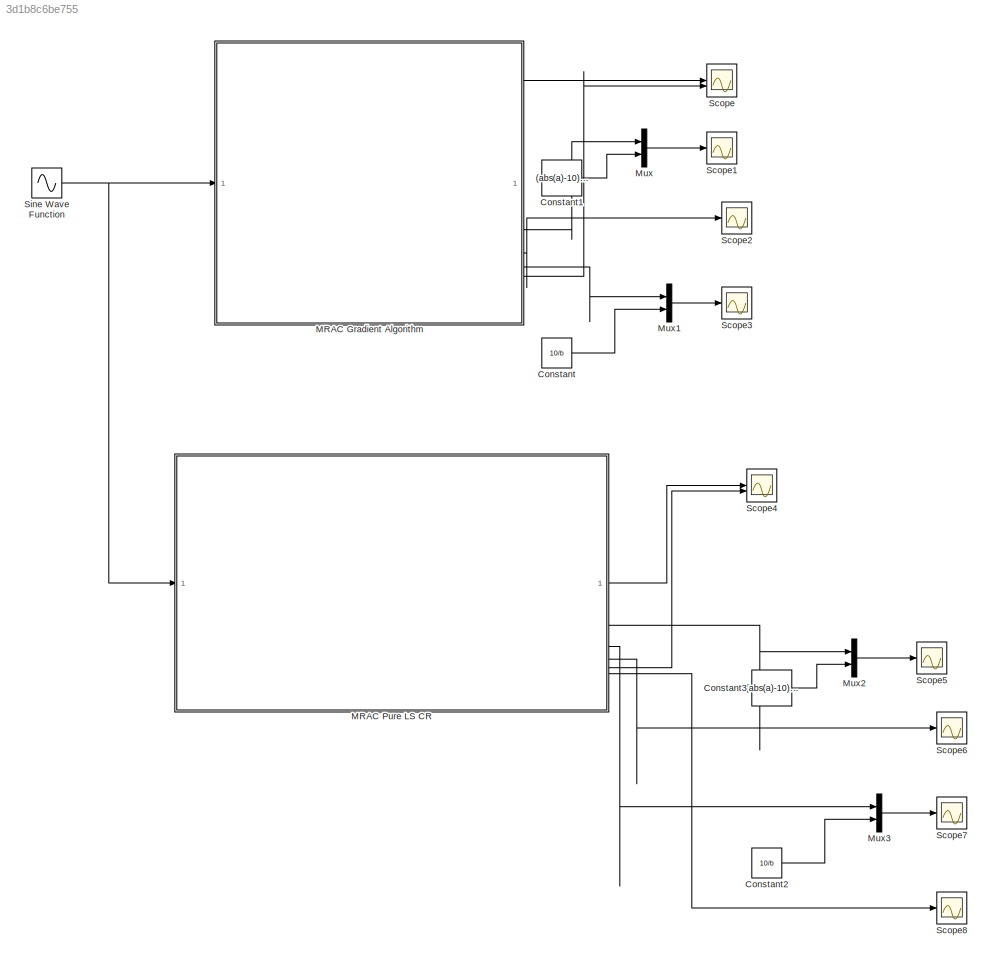
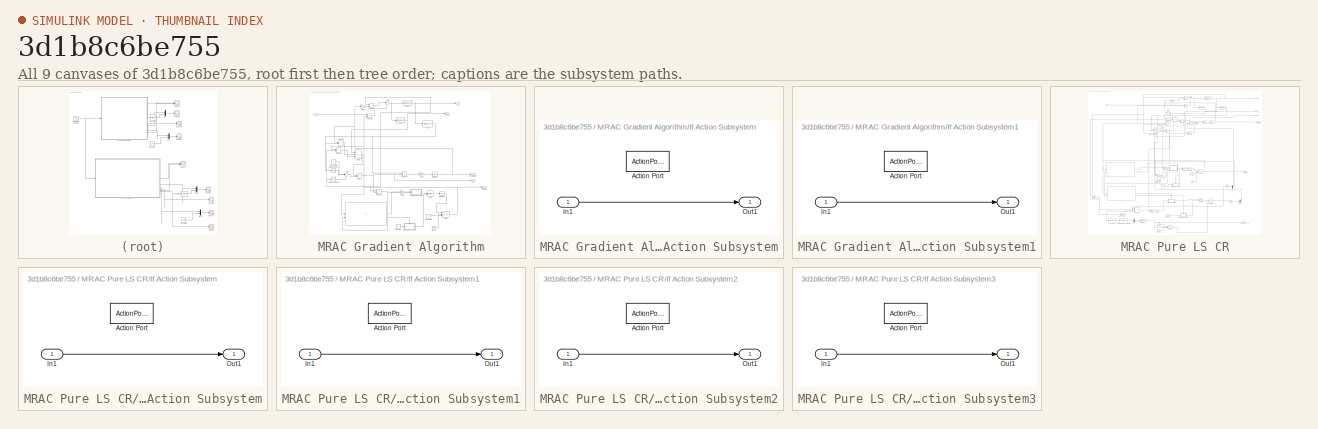
[diagram: thumbnail index - all 9 canvases of the model, root first then tree order]
MODEL slx_3d1b8c6be755
KIND model
CONFIG AbsTol = 1e-10
CONFIG EnableMultiTasking = off
CONFIG FixedStep = auto
CONFIG MaxStep = auto
CONFIG MinStep = auto
CONFIG RelTol = 1e-13
CONFIG SampleTimeConstraint = Unconstrained
CONFIG SolverName = VariableStepAuto
CONFIG StartTime = 0.0
CONFIG StopTime = 20.0
BLOCK [Constant] Constant
  Value = 10/b
BLOCK [Constant] Constant1
  Value = (abs(a)-10)/b
BLOCK [Constant] Constant2
  Value = 10/b
BLOCK [Constant] Constant3
  Value = (abs(a)-10)/b
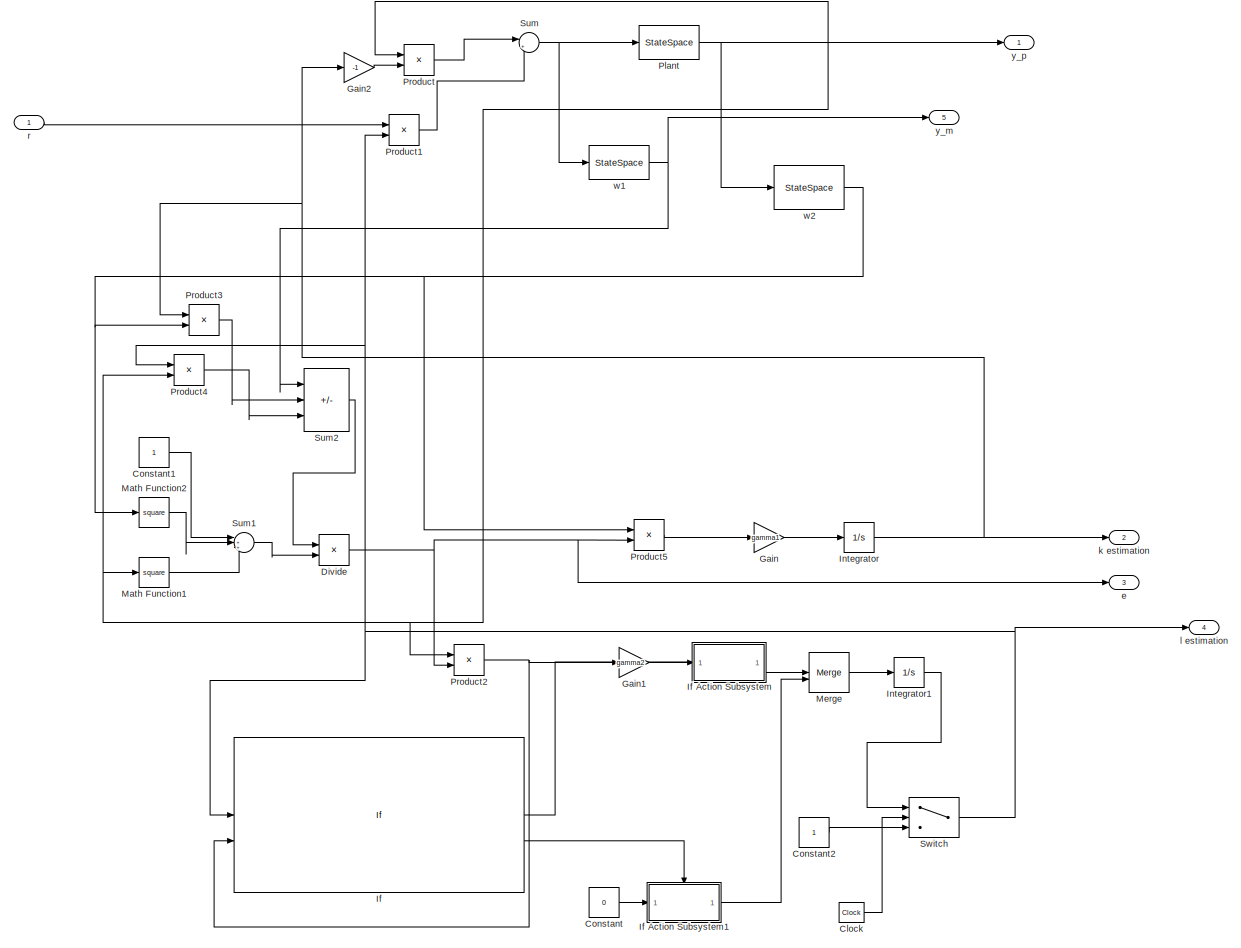
[diagram: MRAC Gradient Algorithm - part 1/1, most of the canvas]
BLOCK [SubSystem] MRAC Gradient Algorithm
BLOCK [Clock] MRAC Gradient Algorithm/Clock
  Decimation = 1
BLOCK [Constant] MRAC Gradient Algorithm/Constant
  Value = 0
BLOCK [Constant] MRAC Gradient Algorithm/Constant1
BLOCK [Constant] MRAC Gradient Algorithm/Constant2
BLOCK [Product] MRAC Gradient Algorithm/Divide
  Inputs = */
BLOCK [Gain] MRAC Gradient Algorithm/Gain
  Gain = gamma1
BLOCK [Gain] MRAC Gradient Algorithm/Gain1
  Gain = gamma2
BLOCK [Gain] MRAC Gradient Algorithm/Gain2
  Gain = -1
BLOCK [If] MRAC Gradient Algorithm/If
  IfExpression = (u1 > b0 & u1 < 10) | (u1 == b0 & u2 >= 0) | (u1 == 10 & u2 <= 0)
  NumInputs = 2
BLOCK [SubSystem] MRAC Gradient Algorithm/If Action Subsystem
  TreatAsAtomicUnit = on
BLOCK [ActionPort] MRAC Gradient Algorithm/If Action Subsystem/Action Port
  ActionPortLabel = if((u1 > b0 & u1 < 10) | (u1 == b0 & u2 >= 0) | (u1 == 10 & u2 <= 0) )
BLOCK [Inport] MRAC Gradient Algorithm/If Action Subsystem/In1
BLOCK [Outport] MRAC Gradient Algorithm/If Action Subsystem/Out1
BLOCK [SubSystem] MRAC Gradient Algorithm/If Action Subsystem1
  TreatAsAtomicUnit = on
BLOCK [ActionPort] MRAC Gradient Algorithm/If Action Subsystem1/Action Port
  ActionPortLabel = else
BLOCK [Inport] MRAC Gradient Algorithm/If Action Subsystem1/In1
BLOCK [Outport] MRAC Gradient Algorithm/If Action Subsystem1/Out1
BLOCK [Integrator] MRAC Gradient Algorithm/Integrator
BLOCK [Integrator] MRAC Gradient Algorithm/Integrator1
BLOCK [Math] MRAC Gradient Algorithm/Math Function1
  Operator = square
BLOCK [Math] MRAC Gradient Algorithm/Math Function2
  Operator = square
BLOCK [Merge] MRAC Gradient Algorithm/Merge
BLOCK [StateSpace] MRAC Gradient Algorithm/Plant
  A = a
  B = b
  D = 0
  InitialCondition = 0
BLOCK [Product] MRAC Gradient Algorithm/Product
BLOCK [Product] MRAC Gradient Algorithm/Product1
BLOCK [Product] MRAC Gradient Algorithm/Product2
BLOCK [Product] MRAC Gradient Algorithm/Product3
BLOCK [Product] MRAC Gradient Algorithm/Product4
BLOCK [Product] MRAC Gradient Algorithm/Product5
BLOCK [Sum] MRAC Gradient Algorithm/Sum
  Inputs = |++
BLOCK [Sum] MRAC Gradient Algorithm/Sum1
  Inputs = |+++
BLOCK [Sum] MRAC Gradient Algorithm/Sum2
  IconShape = rectangular
  Inputs = |+--
BLOCK [Switch] MRAC Gradient Algorithm/Switch
  InputSameDT = off
  SaturateOnIntegerOverflow = off
  Threshold = 0.25
BLOCK [Outport] MRAC Gradient Algorithm/e
  Port = 3
BLOCK [Outport] MRAC Gradient Algorithm/k estimation
  Port = 2
BLOCK [Outport] MRAC Gradient Algorithm/l estimation
  Port = 4
BLOCK [Inport] MRAC Gradient Algorithm/r
BLOCK [StateSpace] MRAC Gradient Algorithm/w1
  A = -10
  B = 10
  D = 0
  InitialCondition = 0
BLOCK [StateSpace] MRAC Gradient Algorithm/w2
  A = -10
  B = 10
  D = 0
  InitialCondition = 0
BLOCK [Outport] MRAC Gradient Algorithm/y_m
  Port = 5
BLOCK [Outport] MRAC Gradient Algorithm/y_p
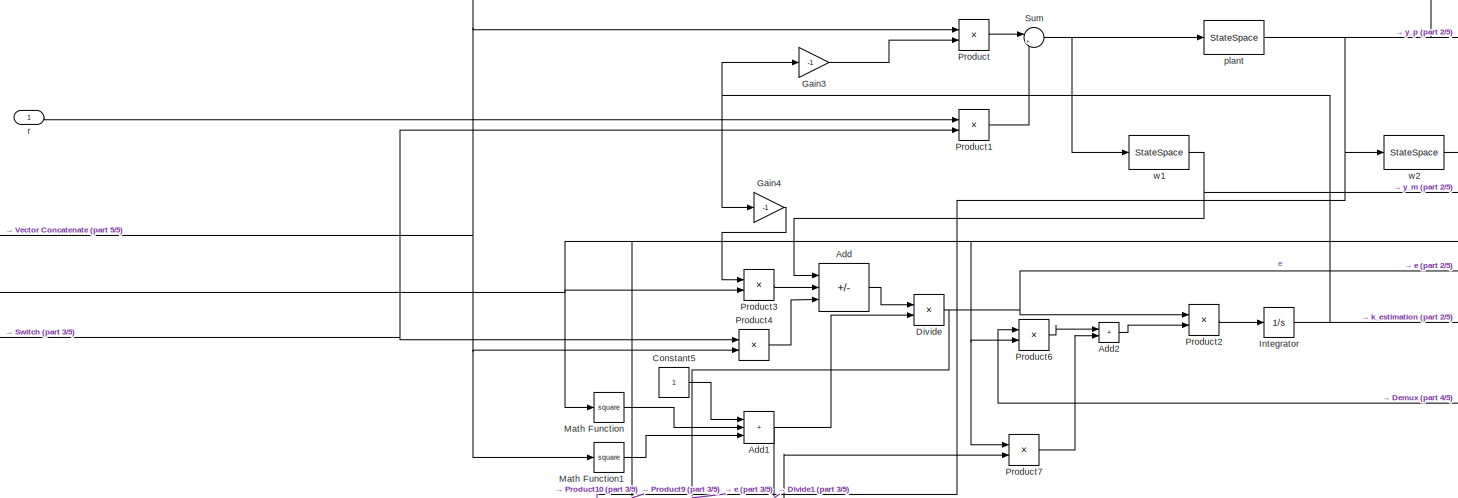
[diagram: MRAC Pure LS CR - part 1/5, top center region]
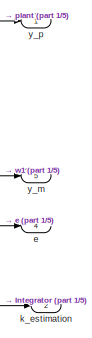
[diagram: MRAC Pure LS CR - part 2/5, top right region]
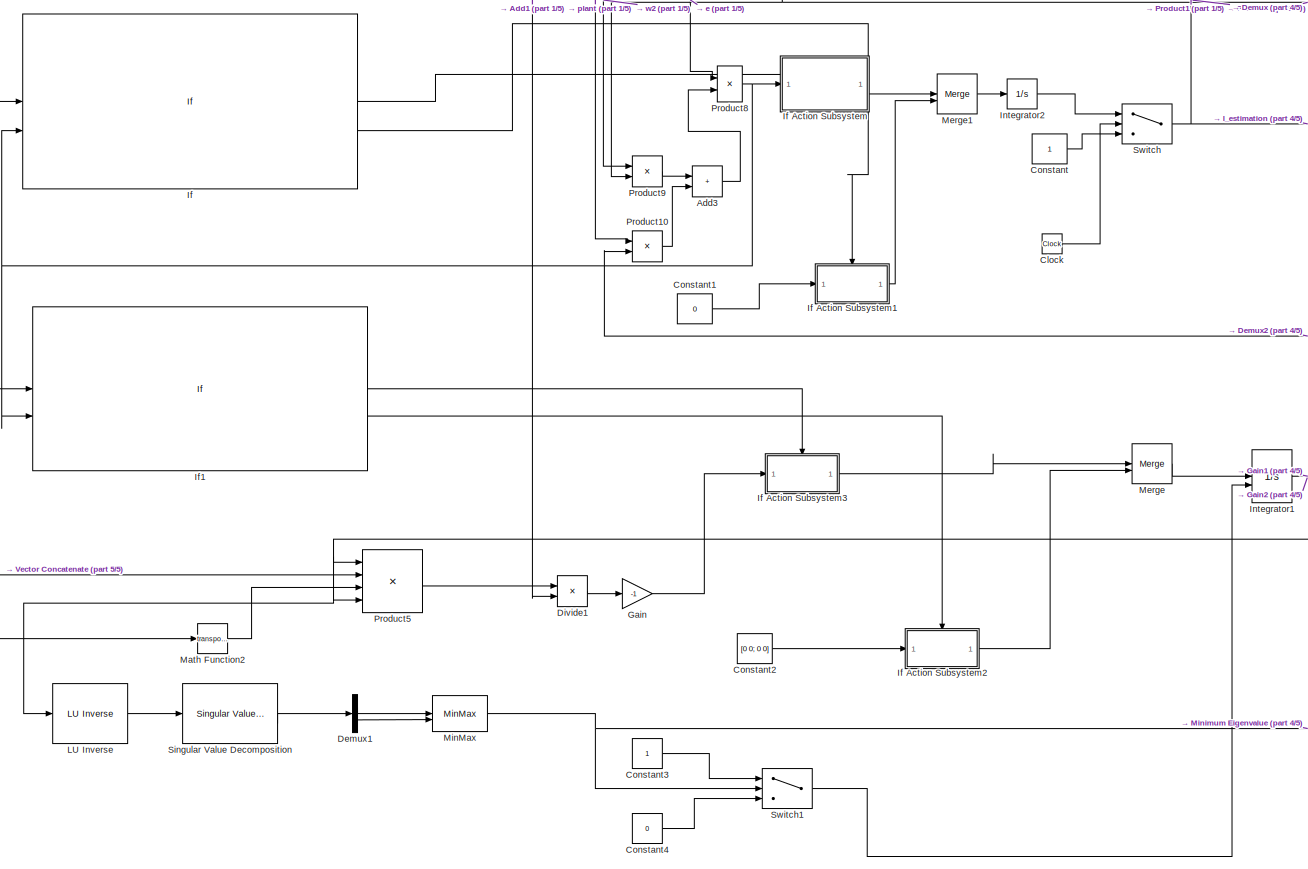
[diagram: MRAC Pure LS CR - part 3/5, bottom center region]
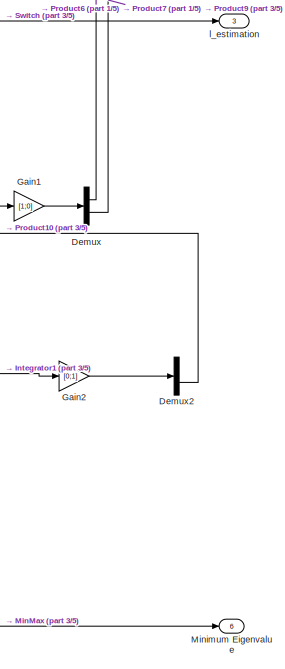
[diagram: MRAC Pure LS CR - part 4/5, bottom right region]
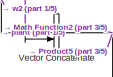
[diagram: MRAC Pure LS CR - part 5/5, bottom left region]
BLOCK [SubSystem] MRAC Pure LS CR
BLOCK [Reference] MRAC Pure LS CR/ LU Inverse  REF=dspinverses/ LU Inverse
  SourceBlock = dspinverses/ LU Inverse
  SourceType = LU Inverse
BLOCK [Sum] MRAC Pure LS CR/Add
  IconShape = rectangular
  Inputs = ++-
BLOCK [Sum] MRAC Pure LS CR/Add1
  IconShape = rectangular
  Inputs = +++
BLOCK [Sum] MRAC Pure LS CR/Add2
  IconShape = rectangular
BLOCK [Sum] MRAC Pure LS CR/Add3
  IconShape = rectangular
BLOCK [Clock] MRAC Pure LS CR/Clock
  Decimation = 1
BLOCK [Constant] MRAC Pure LS CR/Constant
BLOCK [Constant] MRAC Pure LS CR/Constant1
  Value = 0
BLOCK [Constant] MRAC Pure LS CR/Constant2
  Value = [0 0; 0 0]
BLOCK [Constant] MRAC Pure LS CR/Constant3
BLOCK [Constant] MRAC Pure LS CR/Constant4
  Value = 0
BLOCK [Constant] MRAC Pure LS CR/Constant5
BLOCK [Demux] MRAC Pure LS CR/Demux
  Outputs = 2
BLOCK [Demux] MRAC Pure LS CR/Demux1
  Outputs = 2
BLOCK [Demux] MRAC Pure LS CR/Demux2
  Outputs = 2
BLOCK [Product] MRAC Pure LS CR/Divide
  Inputs = */
BLOCK [Product] MRAC Pure LS CR/Divide1
  Inputs = */
BLOCK [Gain] MRAC Pure LS CR/Gain
  Gain = -1
BLOCK [Gain] MRAC Pure LS CR/Gain1
  Gain = [1;0]
  Multiplication = Matrix(u*K)
BLOCK [Gain] MRAC Pure LS CR/Gain2
  Gain = [0;1]
  Multiplication = Matrix(u*K)
BLOCK [Gain] MRAC Pure LS CR/Gain3
  Gain = -1
BLOCK [Gain] MRAC Pure LS CR/Gain4
  Gain = -1
BLOCK [If] MRAC Pure LS CR/If
  IfExpression = (u1 > b0 & u1 < 10) | (u1 == b0 & u2 >= 0) | (u1 == 10 & u2 <= 0)
  NumInputs = 2
BLOCK [SubSystem] MRAC Pure LS CR/If Action Subsystem
  TreatAsAtomicUnit = on
BLOCK [ActionPort] MRAC Pure LS CR/If Action Subsystem/Action Port
  ActionPortLabel = if((u1 > b0 & u1 < 10) | (u1 == b0 & u2 >= 0) | (u1 == 10 & u2 <= 0))
BLOCK [Inport] MRAC Pure LS CR/If Action Subsystem/In1
BLOCK [Outport] MRAC Pure LS CR/If Action Subsystem/Out1
BLOCK [SubSystem] MRAC Pure LS CR/If Action Subsystem1
  TreatAsAtomicUnit = on
BLOCK [ActionPort] MRAC Pure LS CR/If Action Subsystem1/Action Port
  ActionPortLabel = else
BLOCK [Inport] MRAC Pure LS CR/If Action Subsystem1/In1
BLOCK [Outport] MRAC Pure LS CR/If Action Subsystem1/Out1
BLOCK [SubSystem] MRAC Pure LS CR/If Action Subsystem2
  TreatAsAtomicUnit = on
BLOCK [ActionPort] MRAC Pure LS CR/If Action Subsystem2/Action Port
  ActionPortLabel = else
BLOCK [Inport] MRAC Pure LS CR/If Action Subsystem2/In1
BLOCK [Outport] MRAC Pure LS CR/If Action Subsystem2/Out1
BLOCK [SubSystem] MRAC Pure LS CR/If Action Subsystem3
  TreatAsAtomicUnit = on
BLOCK [ActionPort] MRAC Pure LS CR/If Action Subsystem3/Action Port
  ActionPortLabel = if((u1 > b0 & u1 < 10) | (u1 == b0 & u2 >= 0) | (u1 == 10 & u2 <= 0))
BLOCK [Inport] MRAC Pure LS CR/If Action Subsystem3/In1
BLOCK [Outport] MRAC Pure LS CR/If Action Subsystem3/Out1
BLOCK [If] MRAC Pure LS CR/If1
  IfExpression = (u1 > b0 & u1 < 10) | (u1 == b0 & u2 >= 0) | (u1 == 10 & u2 <= 0)
  NumInputs = 2
BLOCK [Integrator] MRAC Pure LS CR/Integrator
BLOCK [Integrator] MRAC Pure LS CR/Integrator1
  ExternalReset = rising
  InitialCondition = diag([r0 r0])
BLOCK [Integrator] MRAC Pure LS CR/Integrator2
BLOCK [Math] MRAC Pure LS CR/Math Function
  Operator = square
BLOCK [Math] MRAC Pure LS CR/Math Function1
  Operator = square
BLOCK [Math] MRAC Pure LS CR/Math Function2
  Operator = transpose
BLOCK [Merge] MRAC Pure LS CR/Merge
BLOCK [Merge] MRAC Pure LS CR/Merge1
BLOCK [MinMax] MRAC Pure LS CR/MinMax
  Function = max
  Inputs = 2
BLOCK [Outport] MRAC Pure LS CR/Minimum Eigenvalue
  Port = 6
BLOCK [Product] MRAC Pure LS CR/Product
BLOCK [Product] MRAC Pure LS CR/Product1
BLOCK [Product] MRAC Pure LS CR/Product10
BLOCK [Product] MRAC Pure LS CR/Product2
BLOCK [Product] MRAC Pure LS CR/Product3
BLOCK [Product] MRAC Pure LS CR/Product4
BLOCK [Product] MRAC Pure LS CR/Product5
  Inputs = 4
  Multiplication = Matrix(*)
BLOCK [Product] MRAC Pure LS CR/Product6
BLOCK [Product] MRAC Pure LS CR/Product7
BLOCK [Product] MRAC Pure LS CR/Product8
BLOCK [Product] MRAC Pure LS CR/Product9
BLOCK [Reference] MRAC Pure LS CR/Singular Value Decomposition  REF=dspfactors/Singular Value
Decomposition
  SourceBlock = dspfactors/Singular Value\nDecomposition
  SourceType = Singular Value Decomposition
BLOCK [Sum] MRAC Pure LS CR/Sum
  Inputs = |++
BLOCK [Switch] MRAC Pure LS CR/Switch
  Criteria = u2 > Threshold
  InputSameDT = off
  SaturateOnIntegerOverflow = off
  Threshold = 1
BLOCK [Switch] MRAC Pure LS CR/Switch1
  Criteria = u2 > Threshold
  InputSameDT = off
  SaturateOnIntegerOverflow = off
  Threshold = 1/r1
BLOCK [Concatenate] MRAC Pure LS CR/Vector Concatenate
BLOCK [Outport] MRAC Pure LS CR/e
  Port = 4
BLOCK [Outport] MRAC Pure LS CR/k_estimation
  Port = 2
BLOCK [Outport] MRAC Pure LS CR/l_estimation
  Port = 3
BLOCK [StateSpace] MRAC Pure LS CR/plant
  A = a
  B = b
  D = 0
  InitialCondition = 0
BLOCK [Inport] MRAC Pure LS CR/r
BLOCK [StateSpace] MRAC Pure LS CR/w1
  A = -10
  B = 10
  D = 0
  InitialCondition = 0
BLOCK [StateSpace] MRAC Pure LS CR/w2
  A = -10
  B = 10
  D = 0
  InitialCondition = 0
BLOCK [Outport] MRAC Pure LS CR/y_m
  Port = 5
BLOCK [Outport] MRAC Pure LS CR/y_p
BLOCK [Mux] Mux
  DisplayOption = bar
  Inputs = 2
BLOCK [Mux] Mux1
  DisplayOption = bar
  Inputs = 2
BLOCK [Mux] Mux2
  DisplayOption = bar
  Inputs = 2
BLOCK [Mux] Mux3
  DisplayOption = bar
  Inputs = 2
BLOCK [Scope] Scope
  Floating = off
  NumInputPorts = 2
  ScopeSpecificationString = Simulink.scopes.TimeScopeBlockCfg('CurrentConfiguration', extmgr.ConfigurationSet(extmgr.Configuration('Core','General UI',true),extmgr.Configuration('Core','Source UI',true),extmgr.Configuration('Sources','WiredSimulink',true),extmgr.Configuration('Visuals','Time Domain',true,'SerializedDisplays',{struct('MinYLimReal','-16.83482','MaxYLimReal','8.88643','YLabelReal','','MinYLimMag','0.00000','Max...<+1539ch>
BLOCK [Scope] Scope1
  Floating = off
  NumInputPorts = 1
  ScopeSpecificationString = Simulink.scopes.TimeScopeBlockCfg('CurrentConfiguration', extmgr.ConfigurationSet(extmgr.Configuration('Core','General UI',true),extmgr.Configuration('Core','Source UI',true),extmgr.Configuration('Sources','WiredSimulink',true,'DataLoggingVariableName','ScopeData1'),extmgr.Configuration('Visuals','Time Domain',true,'SerializedDisplays',{struct('MinYLimReal','-2.95291','MaxYLimReal','2.12255','YLab...<+1586ch>
BLOCK [Scope] Scope2
  Floating = off
  NumInputPorts = 1
  ScopeSpecificationString = Simulink.scopes.TimeScopeBlockCfg('CurrentConfiguration', extmgr.ConfigurationSet(extmgr.Configuration('Core','General UI',true),extmgr.Configuration('Core','Source UI',true),extmgr.Configuration('Sources','WiredSimulink',true,'DataLoggingVariableName','ScopeData2'),extmgr.Configuration('Visuals','Time Domain',true,'SerializedDisplays',{struct('MinYLimReal','-0.3721','MaxYLimReal','0.33767','YLabe...<+1520ch>
BLOCK [Scope] Scope3
  Floating = off
  NumInputPorts = 1
  ScopeSpecificationString = Simulink.scopes.TimeScopeBlockCfg('CurrentConfiguration', extmgr.ConfigurationSet(extmgr.Configuration('Core','General UI',true),extmgr.Configuration('Core','Source UI',true),extmgr.Configuration('Sources','WiredSimulink',true,'DataLoggingVariableName','ScopeData3'),extmgr.Configuration('Visuals','Time Domain',true,'SerializedDisplays',{struct('MinYLimReal','-0.0791','MaxYLimReal','3.74798','YLabe...<+1561ch>
BLOCK [Scope] Scope4
  Floating = off
  NumInputPorts = 2
  ScopeSpecificationString = Simulink.scopes.TimeScopeBlockCfg('CurrentConfiguration', extmgr.ConfigurationSet(extmgr.Configuration('Core','General UI',true),extmgr.Configuration('Core','Source UI',true),extmgr.Configuration('Sources','WiredSimulink',true,'DataLoggingVariableName','ScopeData1'),extmgr.Configuration('Visuals','Time Domain',true,'SerializedDisplays',{struct('MinYLimReal','-1.00000','MaxYLimReal','1.00000','YLab...<+1511ch>
BLOCK [Scope] Scope5
  Floating = off
  NumInputPorts = 1
  ScopeSpecificationString = Simulink.scopes.TimeScopeBlockCfg('CurrentConfiguration', extmgr.ConfigurationSet(extmgr.Configuration('Core','General UI',true),extmgr.Configuration('Core','Source UI',true),extmgr.Configuration('Sources','WiredSimulink',true,'DataLoggingVariableName','ScopeData2'),extmgr.Configuration('Visuals','Time Domain',true,'PlotType','Line','SerializedDisplays',{struct('MinYLimReal','-1.875','MaxYLimReal'...<+1692ch>
BLOCK [Scope] Scope6
  Floating = off
  NumInputPorts = 1
  ScopeSpecificationString = Simulink.scopes.TimeScopeBlockCfg('CurrentConfiguration', extmgr.ConfigurationSet(extmgr.Configuration('Core','General UI',true),extmgr.Configuration('Core','Source UI',true),extmgr.Configuration('Sources','WiredSimulink',true,'DataLoggingVariableName','ScopeData3'),extmgr.Configuration('Visuals','Time Domain',true,'SerializedDisplays',{struct('MinYLimReal','-0.21292','MaxYLimReal','0.27221','YLab...<+1571ch>
BLOCK [Scope] Scope7
  Floating = off
  NumInputPorts = 1
  ScopeSpecificationString = Simulink.scopes.TimeScopeBlockCfg('CurrentConfiguration', extmgr.ConfigurationSet(extmgr.Configuration('Core','General UI',true),extmgr.Configuration('Core','Source UI',true),extmgr.Configuration('Sources','WiredSimulink',true,'DataLoggingVariableName','ScopeData4'),extmgr.Configuration('Visuals','Time Domain',true,'SerializedDisplays',{struct('MinYLimReal','-0.41667','MaxYLimReal','3.75','YLabelR...<+1675ch>
BLOCK [Scope] Scope8
  Floating = off
  NumInputPorts = 1
  ScopeSpecificationString = Simulink.scopes.TimeScopeBlockCfg('CurrentConfiguration', extmgr.ConfigurationSet(extmgr.Configuration('Core','General UI',true),extmgr.Configuration('Core','Source UI',true),extmgr.Configuration('Sources','WiredSimulink',true,'DataLoggingVariableName','ScopeData5'),extmgr.Configuration('Visuals','Time Domain',true,'SerializedDisplays',{struct('MinYLimReal','0.00667','MaxYLimReal','0.02667','YLabe...<+1576ch>
BLOCK [Sin] Sine Wave Function
  Frequency = 2
  SampleTime = 0
LINE Constant1:1 -> Mux:2
LINE Constant2:1 -> Mux3:2
LINE Constant3:1 -> Mux2:2
LINE Constant:1 -> Mux1:2
LINE MRAC Gradient Algorithm/Clock:1 -> MRAC Gradient Algorithm/Switch:2
LINE MRAC Gradient Algorithm/Constant1:1 -> MRAC Gradient Algorithm/Sum1:1
LINE MRAC Gradient Algorithm/Constant2:1 -> MRAC Gradient Algorithm/Switch:3
LINE MRAC Gradient Algorithm/Constant:1 -> MRAC Gradient Algorithm/If Action Subsystem1:1
NET MRAC Gradient Algorithm/Divide:1 -> MRAC Gradient Algorithm/Product2:2, MRAC Gradient Algorithm/Product5:2, MRAC Gradient Algorithm/e:1
LINE MRAC Gradient Algorithm/Gain1:1 -> MRAC Gradient Algorithm/If Action Subsystem:1
LINE MRAC Gradient Algorithm/Gain2:1 -> MRAC Gradient Algorithm/Product:2
LINE MRAC Gradient Algorithm/Gain:1 -> MRAC Gradient Algorithm/Integrator:1
LINE MRAC Gradient Algorithm/If Action Subsystem/In1:1 -> MRAC Gradient Algorithm/If Action Subsystem/Out1:1
LINE MRAC Gradient Algorithm/If Action Subsystem1/In1:1 -> MRAC Gradient Algorithm/If Action Subsystem1/Out1:1
LINE MRAC Gradient Algorithm/If Action Subsystem1:1 -> MRAC Gradient Algorithm/Merge:2
LINE MRAC Gradient Algorithm/If Action Subsystem:1 -> MRAC Gradient Algorithm/Merge:1
LINE MRAC Gradient Algorithm/If:1 -> MRAC Gradient Algorithm/If Action Subsystem:ifaction
LINE MRAC Gradient Algorithm/If:2 -> MRAC Gradient Algorithm/If Action Subsystem1:ifaction
LINE MRAC Gradient Algorithm/Integrator1:1 -> MRAC Gradient Algorithm/Switch:1
NET MRAC Gradient Algorithm/Integrator:1 -> MRAC Gradient Algorithm/Gain2:1, MRAC Gradient Algorithm/Product3:1, MRAC Gradient Algorithm/k estimation:1
LINE MRAC Gradient Algorithm/Math Function1:1 -> MRAC Gradient Algorithm/Sum1:3
LINE MRAC Gradient Algorithm/Math Function2:1 -> MRAC Gradient Algorithm/Sum1:2
LINE MRAC Gradient Algorithm/Merge:1 -> MRAC Gradient Algorithm/Integrator1:1
NET MRAC Gradient Algorithm/Plant:1 -> MRAC Gradient Algorithm/Math Function1:1, MRAC Gradient Algorithm/Product2:1, MRAC Gradient Algorithm/Product4:2, MRAC Gradient Algorithm/Product:1, MRAC Gradient Algorithm/w2:1, MRAC Gradient Algorithm/y_p:1
LINE MRAC Gradient Algorithm/Product1:1 -> MRAC Gradient Algorithm/Sum:2
NET MRAC Gradient Algorithm/Product2:1 -> MRAC Gradient Algorithm/Gain1:1, MRAC Gradient Algorithm/If:2
LINE MRAC Gradient Algorithm/Product3:1 -> MRAC Gradient Algorithm/Sum2:2
LINE MRAC Gradient Algorithm/Product4:1 -> MRAC Gradient Algorithm/Sum2:3
LINE MRAC Gradient Algorithm/Product5:1 -> MRAC Gradient Algorithm/Gain:1
LINE MRAC Gradient Algorithm/Product:1 -> MRAC Gradient Algorithm/Sum:1
LINE MRAC Gradient Algorithm/Sum1:1 -> MRAC Gradient Algorithm/Divide:2
LINE MRAC Gradient Algorithm/Sum2:1 -> MRAC Gradient Algorithm/Divide:1
NET MRAC Gradient Algorithm/Sum:1 -> MRAC Gradient Algorithm/Plant:1, MRAC Gradient Algorithm/w1:1
NET MRAC Gradient Algorithm/Switch:1 -> MRAC Gradient Algorithm/If:1, MRAC Gradient Algorithm/Product1:2, MRAC Gradient Algorithm/Product4:1, MRAC Gradient Algorithm/l estimation:1
LINE MRAC Gradient Algorithm/r:1 -> MRAC Gradient Algorithm/Product1:1
NET MRAC Gradient Algorithm/w1:1 -> MRAC Gradient Algorithm/Sum2:1, MRAC Gradient Algorithm/y_m:1
NET MRAC Gradient Algorithm/w2:1 -> MRAC Gradient Algorithm/Math Function2:1, MRAC Gradient Algorithm/Product3:2, MRAC Gradient Algorithm/Product5:1
LINE MRAC Gradient Algorithm:1 -> Scope:1
LINE MRAC Gradient Algorithm:2 -> Mux:1
LINE MRAC Gradient Algorithm:3 -> Scope2:1
LINE MRAC Gradient Algorithm:4 -> Mux1:1
LINE MRAC Gradient Algorithm:5 -> Scope:2
LINE MRAC Pure LS CR/ LU Inverse:1 -> MRAC Pure LS CR/Singular Value Decomposition:1
NET MRAC Pure LS CR/Add1:1 -> MRAC Pure LS CR/Divide1:2, MRAC Pure LS CR/Divide:2
LINE MRAC Pure LS CR/Add2:1 -> MRAC Pure LS CR/Product2:2
LINE MRAC Pure LS CR/Add3:1 -> MRAC Pure LS CR/Product8:2
LINE MRAC Pure LS CR/Add:1 -> MRAC Pure LS CR/Divide:1
LINE MRAC Pure LS CR/Clock:1 -> MRAC Pure LS CR/Switch:2
LINE MRAC Pure LS CR/Constant1:1 -> MRAC Pure LS CR/If Action Subsystem1:1
LINE MRAC Pure LS CR/Constant2:1 -> MRAC Pure LS CR/If Action Subsystem2:1
LINE MRAC Pure LS CR/Constant3:1 -> MRAC Pure LS CR/Switch1:1
LINE MRAC Pure LS CR/Constant4:1 -> MRAC Pure LS CR/Switch1:3
LINE MRAC Pure LS CR/Constant5:1 -> MRAC Pure LS CR/Add1:1
LINE MRAC Pure LS CR/Constant:1 -> MRAC Pure LS CR/Switch:3
LINE MRAC Pure LS CR/Demux1:1 -> MRAC Pure LS CR/MinMax:1
LINE MRAC Pure LS CR/Demux1:2 -> MRAC Pure LS CR/MinMax:2
LINE MRAC Pure LS CR/Demux2:2 -> MRAC Pure LS CR/Product10:2
LINE MRAC Pure LS CR/Demux:1 -> MRAC Pure LS CR/Product6:1
NET MRAC Pure LS CR/Demux:2 -> MRAC Pure LS CR/Product7:2, MRAC Pure LS CR/Product9:2
LINE MRAC Pure LS CR/Divide1:1 -> MRAC Pure LS CR/Gain:1
NET MRAC Pure LS CR/Divide:1 -> MRAC Pure LS CR/Product2:1, MRAC Pure LS CR/Product8:1, MRAC Pure LS CR/e:1
LINE MRAC Pure LS CR/Gain1:1 -> MRAC Pure LS CR/Demux:1
LINE MRAC Pure LS CR/Gain2:1 -> MRAC Pure LS CR/Demux2:1
LINE MRAC Pure LS CR/Gain3:1 -> MRAC Pure LS CR/Product:2
LINE MRAC Pure LS CR/Gain4:1 -> MRAC Pure LS CR/Product3:1
LINE MRAC Pure LS CR/Gain:1 -> MRAC Pure LS CR/If Action Subsystem3:1
LINE MRAC Pure LS CR/If Action Subsystem/In1:1 -> MRAC Pure LS CR/If Action Subsystem/Out1:1
LINE MRAC Pure LS CR/If Action Subsystem1/In1:1 -> MRAC Pure LS CR/If Action Subsystem1/Out1:1
LINE MRAC Pure LS CR/If Action Subsystem1:1 -> MRAC Pure LS CR/Merge1:2
LINE MRAC Pure LS CR/If Action Subsystem2/In1:1 -> MRAC Pure LS CR/If Action Subsystem2/Out1:1
LINE MRAC Pure LS CR/If Action Subsystem2:1 -> MRAC Pure LS CR/Merge:2
LINE MRAC Pure LS CR/If Action Subsystem3/In1:1 -> MRAC Pure LS CR/If Action Subsystem3/Out1:1
LINE MRAC Pure LS CR/If Action Subsystem3:1 -> MRAC Pure LS CR/Merge:1
LINE MRAC Pure LS CR/If Action Subsystem:1 -> MRAC Pure LS CR/Merge1:1
LINE MRAC Pure LS CR/If1:1 -> MRAC Pure LS CR/If Action Subsystem3:ifaction
LINE MRAC Pure LS CR/If1:2 -> MRAC Pure LS CR/If Action Subsystem2:ifaction
LINE MRAC Pure LS CR/If:1 -> MRAC Pure LS CR/If Action Subsystem:ifaction
LINE MRAC Pure LS CR/If:2 -> MRAC Pure LS CR/If Action Subsystem1:ifaction
NET MRAC Pure LS CR/Integrator1:1 -> MRAC Pure LS CR/ LU Inverse:1, MRAC Pure LS CR/Gain1:1, MRAC Pure LS CR/Gain2:1, MRAC Pure LS CR/Product5:1, MRAC Pure LS CR/Product5:4
LINE MRAC Pure LS CR/Integrator2:1 -> MRAC Pure LS CR/Switch:1
NET MRAC Pure LS CR/Integrator:1 -> MRAC Pure LS CR/Gain3:1, MRAC Pure LS CR/Gain4:1, MRAC Pure LS CR/k_estimation:1
LINE MRAC Pure LS CR/Math Function1:1 -> MRAC Pure LS CR/Add1:3
LINE MRAC Pure LS CR/Math Function2:1 -> MRAC Pure LS CR/Product5:3
LINE MRAC Pure LS CR/Math Function:1 -> MRAC Pure LS CR/Add1:2
LINE MRAC Pure LS CR/Merge1:1 -> MRAC Pure LS CR/Integrator2:1
LINE MRAC Pure LS CR/Merge:1 -> MRAC Pure LS CR/Integrator1:1
NET MRAC Pure LS CR/MinMax:1 -> MRAC Pure LS CR/Minimum Eigenvalue:1, MRAC Pure LS CR/Switch1:2
LINE MRAC Pure LS CR/Product10:1 -> MRAC Pure LS CR/Add3:2
LINE MRAC Pure LS CR/Product1:1 -> MRAC Pure LS CR/Sum:2
LINE MRAC Pure LS CR/Product2:1 -> MRAC Pure LS CR/Integrator:1
LINE MRAC Pure LS CR/Product3:1 -> MRAC Pure LS CR/Add:2
LINE MRAC Pure LS CR/Product4:1 -> MRAC Pure LS CR/Add:3
LINE MRAC Pure LS CR/Product5:1 -> MRAC Pure LS CR/Divide1:1
LINE MRAC Pure LS CR/Product6:1 -> MRAC Pure LS CR/Add2:1
LINE MRAC Pure LS CR/Product7:1 -> MRAC Pure LS CR/Add2:2
NET MRAC Pure LS CR/Product8:1 -> MRAC Pure LS CR/If Action Subsystem:1, MRAC Pure LS CR/If1:2, MRAC Pure LS CR/If:2
LINE MRAC Pure LS CR/Product9:1 -> MRAC Pure LS CR/Add3:1
LINE MRAC Pure LS CR/Product:1 -> MRAC Pure LS CR/Sum:1
LINE MRAC Pure LS CR/Singular Value Decomposition:2 -> MRAC Pure LS CR/Demux1:1
NET MRAC Pure LS CR/Sum:1 -> MRAC Pure LS CR/plant:1, MRAC Pure LS CR/w1:1
LINE MRAC Pure LS CR/Switch1:1 -> MRAC Pure LS CR/Integrator1:2
NET MRAC Pure LS CR/Switch:1 -> MRAC Pure LS CR/If1:1, MRAC Pure LS CR/If:1, MRAC Pure LS CR/Product1:2, MRAC Pure LS CR/Product4:1, MRAC Pure LS CR/l_estimation:1
NET MRAC Pure LS CR/Vector Concatenate:1 -> MRAC Pure LS CR/Math Function2:1, MRAC Pure LS CR/Product5:2
NET MRAC Pure LS CR/plant:1 -> MRAC Pure LS CR/Math Function1:1, MRAC Pure LS CR/Product10:1, MRAC Pure LS CR/Product4:2, MRAC Pure LS CR/Product:1, MRAC Pure LS CR/Vector Concatenate:2, MRAC Pure LS CR/w2:1, MRAC Pure LS CR/y_p:1
LINE MRAC Pure LS CR/r:1 -> MRAC Pure LS CR/Product1:1
NET MRAC Pure LS CR/w1:1 -> MRAC Pure LS CR/Add:1, MRAC Pure LS CR/y_m:1
NET MRAC Pure LS CR/w2:1 -> MRAC Pure LS CR/Math Function:1, MRAC Pure LS CR/Product3:2, MRAC Pure LS CR/Product6:2, MRAC Pure LS CR/Product7:1, MRAC Pure LS CR/Product9:1, MRAC Pure LS CR/Vector Concatenate:1
LINE MRAC Pure LS CR:1 -> Scope4:1
LINE MRAC Pure LS CR:2 -> Mux2:1
LINE MRAC Pure LS CR:3 -> Mux3:1
LINE MRAC Pure LS CR:4 -> Scope6:1
LINE MRAC Pure LS CR:5 -> Scope4:2
LINE MRAC Pure LS CR:6 -> Scope8:1
LINE Mux1:1 -> Scope3:1
LINE Mux2:1 -> Scope5:1
LINE Mux3:1 -> Scope7:1
LINE Mux:1 -> Scope1:1
NET Sine Wave Function:1 -> MRAC Gradient Algorithm:1, MRAC Pure LS CR:1
note: NET lines group one-source signal fan-out (src -> all destinations, sorted); 1:1 wires keep LINE
